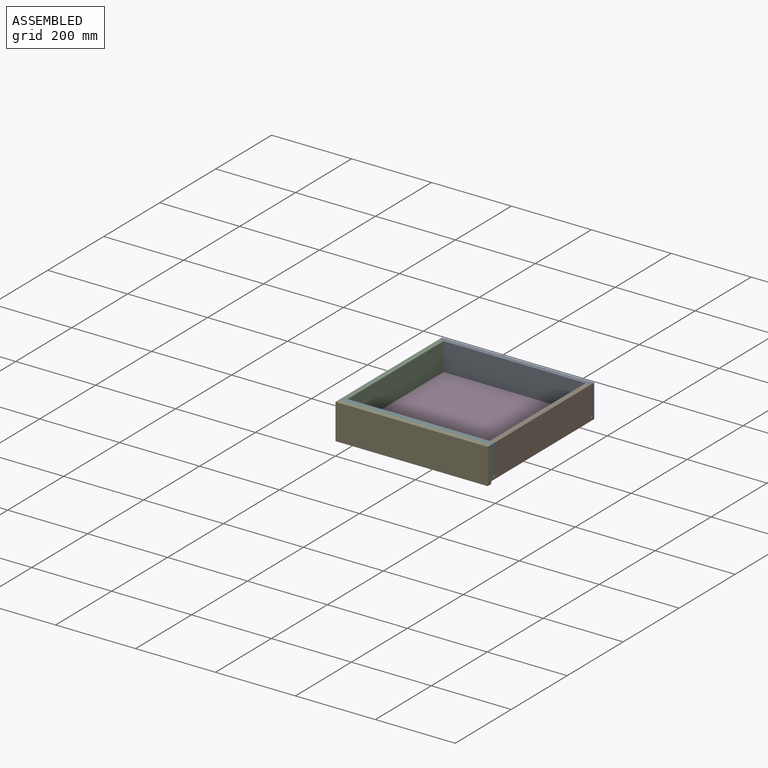
[diagram: assembled view]
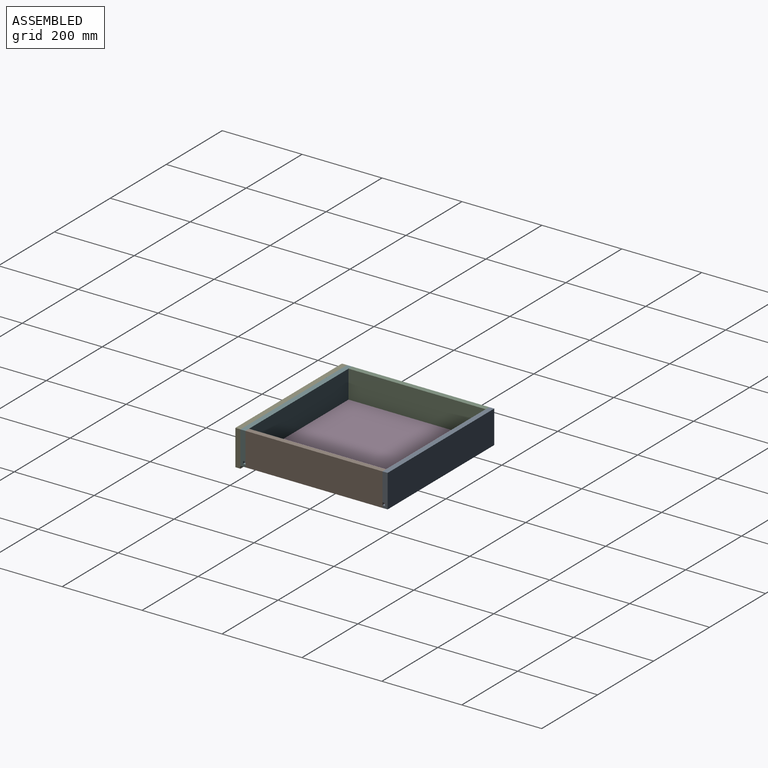
[diagram: assembled view, second angle]
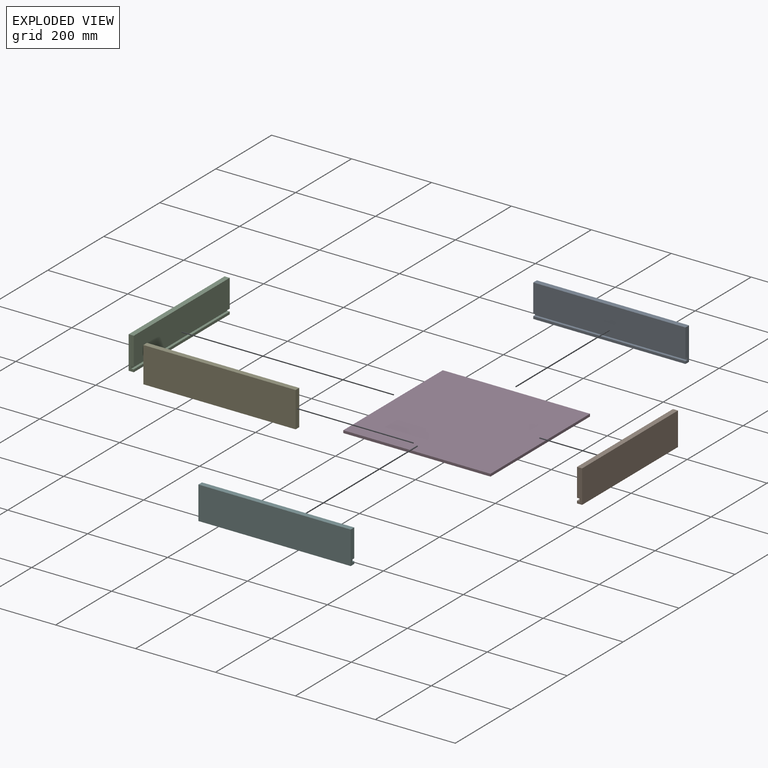
[diagram: exploded view]
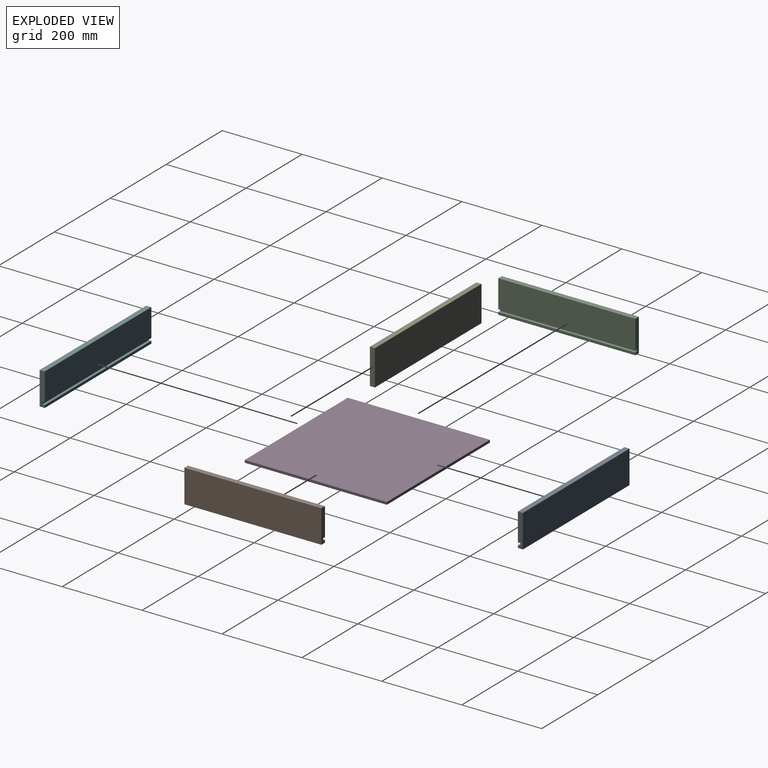
[diagram: exploded view, second angle]
ASSEMBLY  parts=6 mates=6
PART A: 10 faces, bbox 381x12.7x82.6 mm
  f0: plane 381x6.35mm, normal (0,-1,0), area 2419.4mm2, adj f1,f2,f3,f7
  f1: plane 82.55x12.7mm, normal (-1,0,0), area 1008.1mm2, adj f0,f3,f4,f5,f6,f7,f8,f9
  f2: plane 82.55x12.7mm, normal (1,0,0), area 1008.1mm2, adj f0,f3,f4,f5,f6,f7,f8,f9
  f3: plane 381x12.7mm, normal (0,0,-1), area 4838.7mm2, adj f0,f1,f2,f6
  f4: plane 381x12.7mm, normal (0,0,1), area 4838.7mm2, adj f1,f2,f5,f6
  f5: plane 381x69.85mm, normal (0,-1,0), area 26612.8mm2, adj f1,f2,f4,f8
  f6: plane 381x82.55mm, normal (0,1,0), area 31451.5mm2, adj f1,f2,f3,f4
  f7: plane 381x6.35mm, normal (0,0,1), area 2419.3mm2, adj f0,f1,f2,f9
  f8: plane 381x6.35mm, normal (0,0,-1), area 2419.3mm2, adj f1,f2,f5,f9
  f9: plane 381x6.35mm, normal (0,-1,0), area 2419.3mm2, adj f1,f2,f7,f8
PART B: 10 faces, bbox 12.7x342.9x82.6 mm
  f0: plane 342.9x6.35mm, normal (1,0,0), area 2177.4mm2, adj f1,f2,f3,f7
  f1: plane 82.55x12.7mm, normal (0,-1,0), area 1008.1mm2, adj f0,f3,f4,f5,f6,f7,f8,f9
  f2: plane 82.55x12.7mm, normal (0,1,0), area 1008.1mm2, adj f0,f3,f4,f5,f6,f7,f8,f9
  f3: plane 342.9x12.7mm, normal (0,0,-1), area 4354.8mm2, adj f0,f1,f2,f6
  f4: plane 342.9x12.7mm, normal (0,0,1), area 4354.8mm2, adj f1,f2,f5,f6
  f5: plane 342.9x69.85mm, normal (1,0,0), area 23951.6mm2, adj f1,f2,f4,f8
  f6: plane 342.9x82.55mm, normal (-1,0,0), area 28306.4mm2, adj f1,f2,f3,f4
  f7: plane 342.9x6.35mm, normal (0,0,1), area 2177.4mm2, adj f0,f1,f2,f9
  f8: plane 342.9x6.35mm, normal (0,0,-1), area 2177.4mm2, adj f1,f2,f5,f9
  f9: plane 342.9x6.35mm, normal (1,0,0), area 2177.4mm2, adj f1,f2,f7,f8
PART C: same geometry as B
PART D: 6 faces, bbox 368.3x355.6x6.4 mm
  f0: plane 355.6x6.35mm, normal (-1,0,0), area 2258.1mm2, adj f1,f3,f4,f5
  f1: plane 368.3x6.35mm, normal (0,-1,0), area 2338.7mm2, adj f0,f2,f4,f5
  f2: plane 355.6x6.35mm, normal (1,0,0), area 2258.1mm2, adj f1,f3,f4,f5
  f3: plane 368.3x6.35mm, normal (0,1,0), area 2338.7mm2, adj f0,f2,f4,f5
  f4: plane 368.3x355.6mm, normal (0,0,1), area 130967.5mm2, adj f0,f1,f2,f3
  f5: plane 368.3x355.6mm, normal (0,0,-1), area 130967.5mm2, adj f0,f1,f2,f3
PART E: 6 faces, bbox 381x12.7x88.9 mm
  f0: plane 88.9x12.7mm, normal (-1,0,0), area 1129mm2, adj f1,f3,f4,f5
  f1: plane 381x12.7mm, normal (0,0,-1), area 4838.7mm2, adj f0,f2,f4,f5
  f2: plane 88.9x12.7mm, normal (1,0,0), area 1129mm2, adj f1,f3,f4,f5
  f3: plane 381x12.7mm, normal (0,0,1), area 4838.7mm2, adj f0,f2,f4,f5
  f4: plane 381x88.9mm, normal (0,-1,0), area 33870.9mm2, adj f0,f1,f2,f3
  f5: plane 381x88.9mm, normal (0,1,0), area 33870.9mm2, adj f0,f1,f2,f3
PART F: same geometry as A
PLACE A t=(0,381,6.35)mm
PLACE B rot(axis=(0,0,1),180deg) t=(381,368.3,6.35)mm
PLACE C t=(0,25.4,6.35)mm
PLACE D t=(6.35,19.05,12.7)mm
PLACE E t=(0,12.7,0)mm
PLACE F rot(axis=(0,0,-1),180deg) t=(381,12.7,6.35)mm
MATE fastened F.f0 <-> C.f1  axis (0,1,0) through (0,25.4,6.35)mm
MATE fastened F.f0 <-> B.f2  axis (0,1,0) through (381,25.4,6.35)mm
MATE fastened F.f4 <-> E.f3  axis (0,0,1) through (190.5,12.7,88.9)mm
MATE fastened A.f9 <-> D.f3  axis (0,-1,0) through (190.5,374.65,19.05)mm
MATE fastened A.f1 <-> C.f6  axis (-1,0,0) through (0,368.3,6.35)mm
MATE parallel D.f4 <-> C.f8  axis (0,0,1) through (190.5,196.85,19.05)mm
